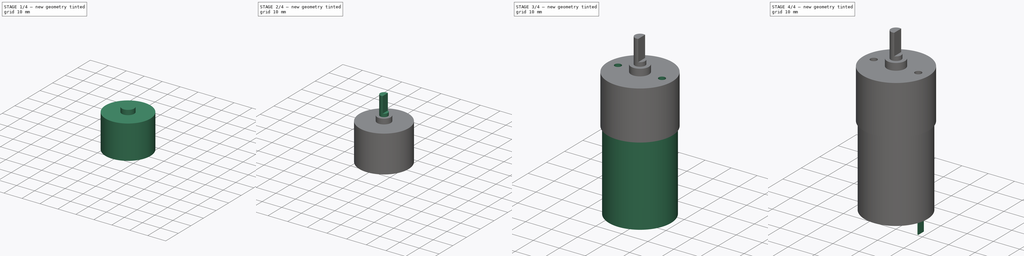
[diagram: build sequence overview — one tinted view per stage of 4, left to right]
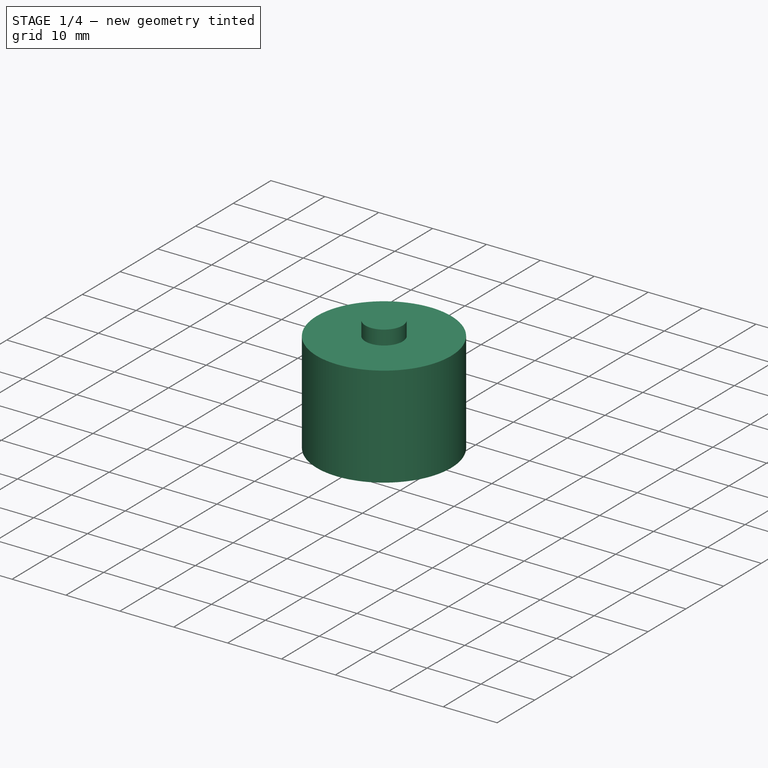
[diagram: stage 1 of 4 — iso view after this stage's code; geometry added in this stage tinted green]
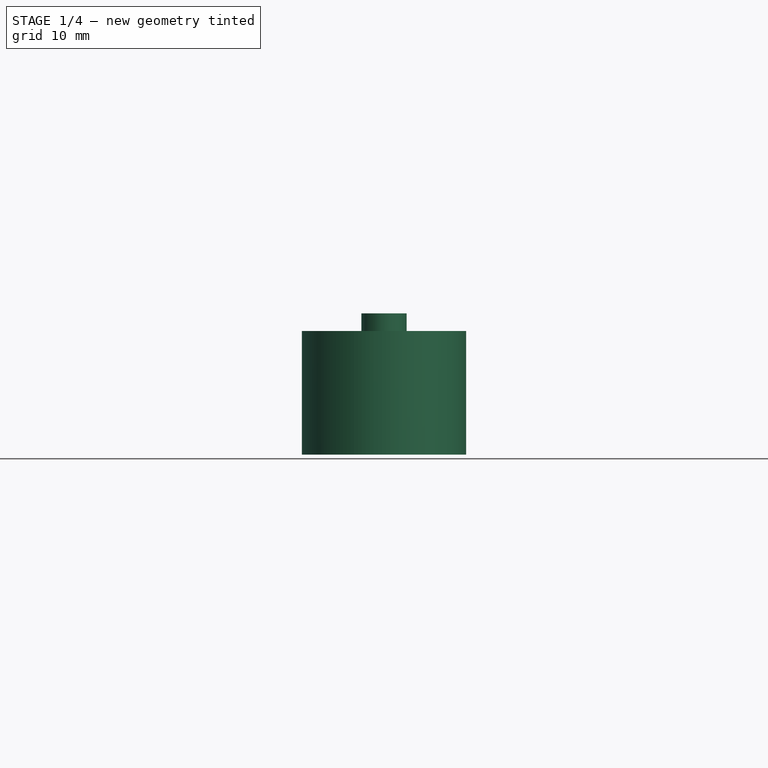
[diagram: stage 1 of 4 — front view after this stage's code; geometry added in this stage tinted green]
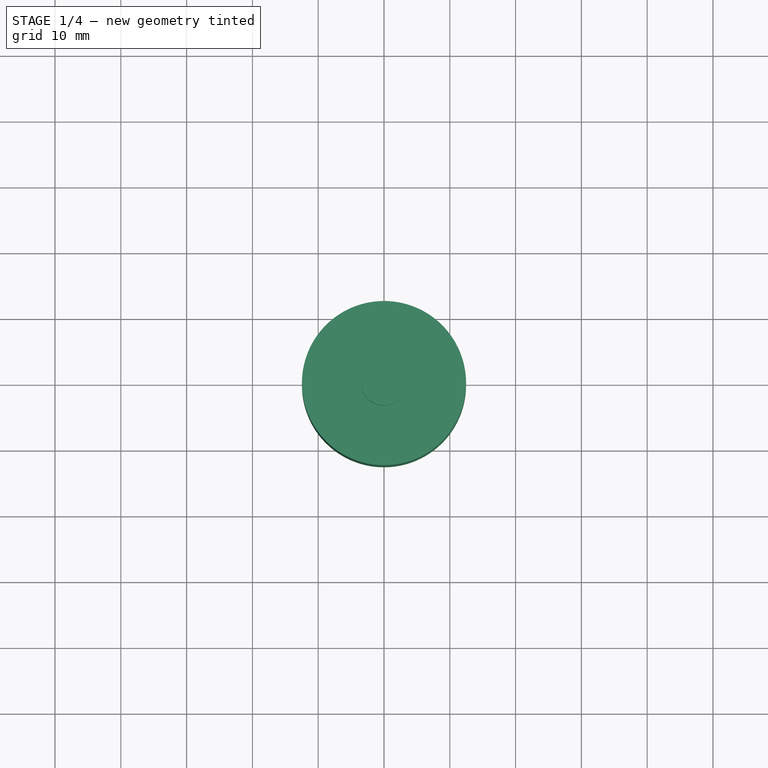
[diagram: stage 1 of 4 — top view after this stage's code; geometry added in this stage tinted green]
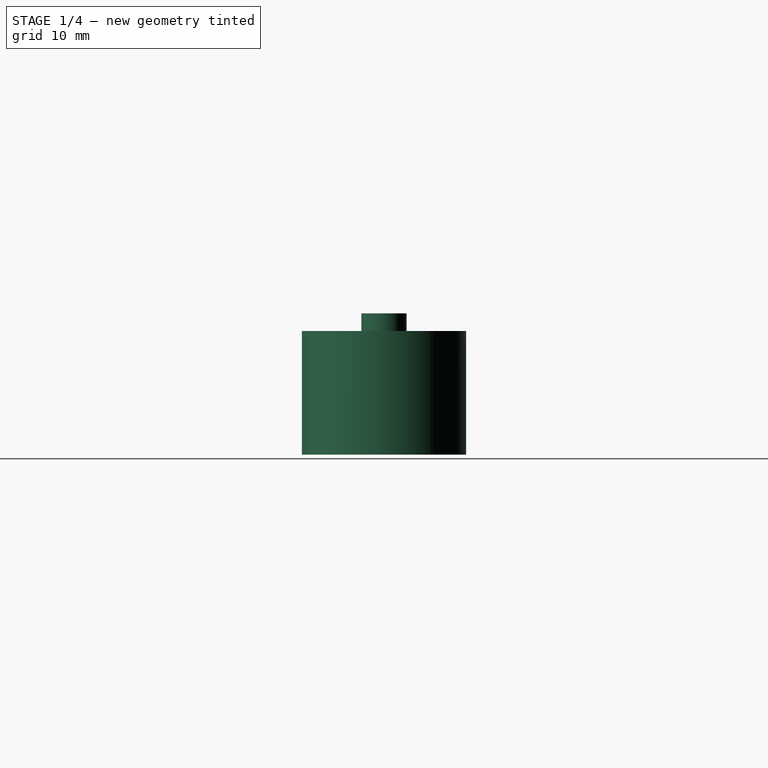
[diagram: stage 1 of 4 — right view after this stage's code; geometry added in this stage tinted green]
FCSTD DOCUMENT  (FreeCAD 0.15R4671 (Git))
Label: gearMotor
License: All rights reserved
LicenseURL: http://en.wikipedia.org/wiki/All_rights_reserved
objects: Sketcher::SketchObject×9, PartDesign::Pad×7, PartDesign::Pocket×2
note: 27 computed .brp shape members not serialized (recipe doc carries the construction recipe); baked Part::Feature solids carry a one-line shape summary decoded from their .brp

FEATURE [Sketcher::SketchObject] Sketch
  sketch-geometry (1):
    g0: Circle CenterX=0 CenterY=0 CenterZ=0 NormalX=0 NormalY=0 NormalZ=1 Radius=12.4778
  constraints (2):
    c: Radius(g0) = 12.4778
    c: Coincident(g-1,g0)
FEATURE [PartDesign::Pad] Pad
  Length = 18.7833
  Length2 = 100
  Reversed = true
  Sketch = -> Sketch
  Type = 0
FEATURE [Sketcher::SketchObject] Sketch001
  Support = -> Pad [Face2]
  sketch-geometry (1):
    g0: Circle CenterX=0 CenterY=0 CenterZ=0 NormalX=0 NormalY=0 NormalZ=1 Radius=3.44805
  constraints (2):
    c: Coincident(g0,g-1)
    c: Radius(g0) = 3.44805
FEATURE [PartDesign::Pad] Pad001
  Length = 2.667
  Length2 = 100
  Sketch = -> Sketch001
  Type = 0
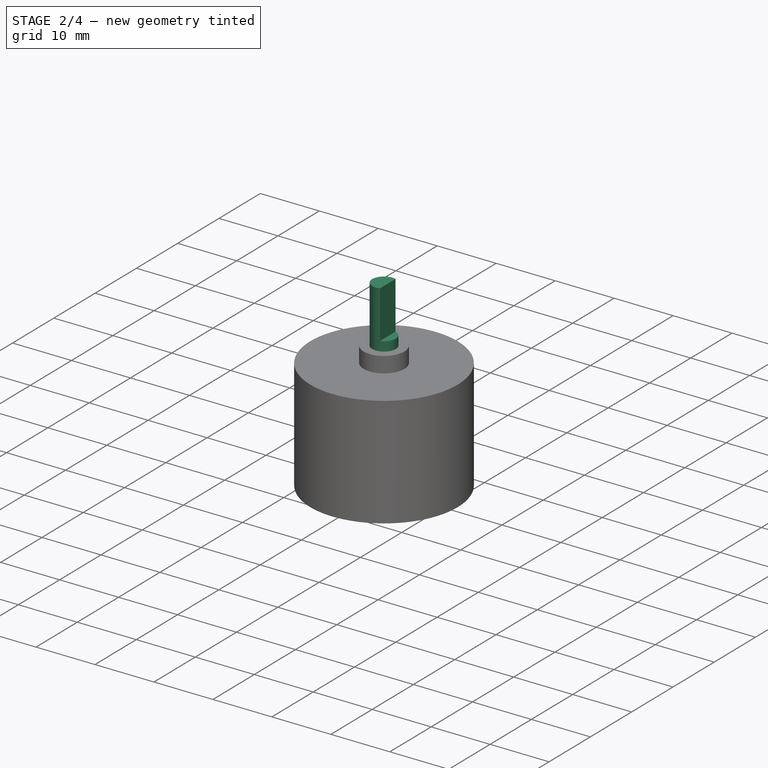
[diagram: stage 2 of 4 — iso view after this stage's code; geometry added in this stage tinted green]
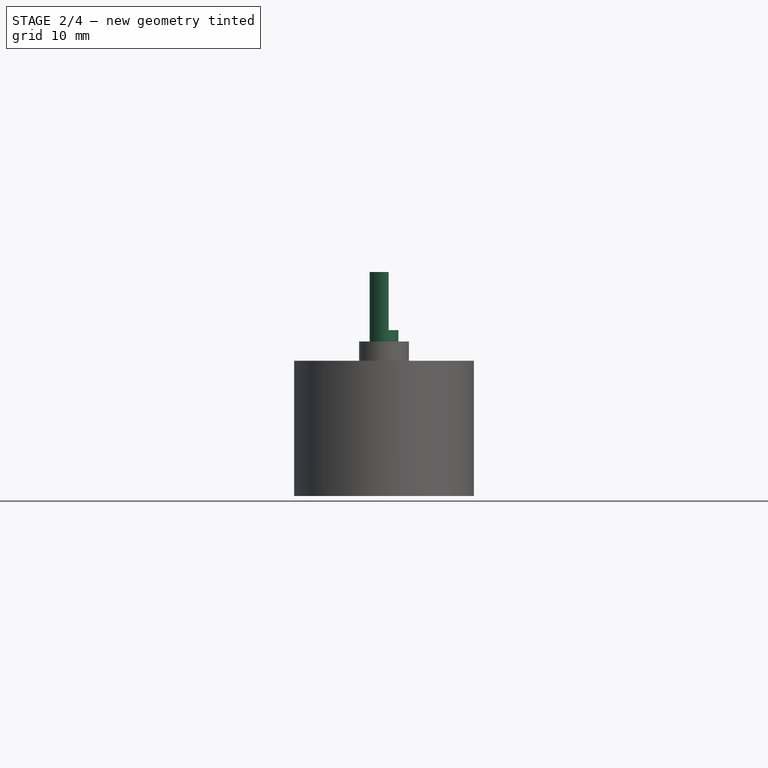
[diagram: stage 2 of 4 — front view after this stage's code; geometry added in this stage tinted green]
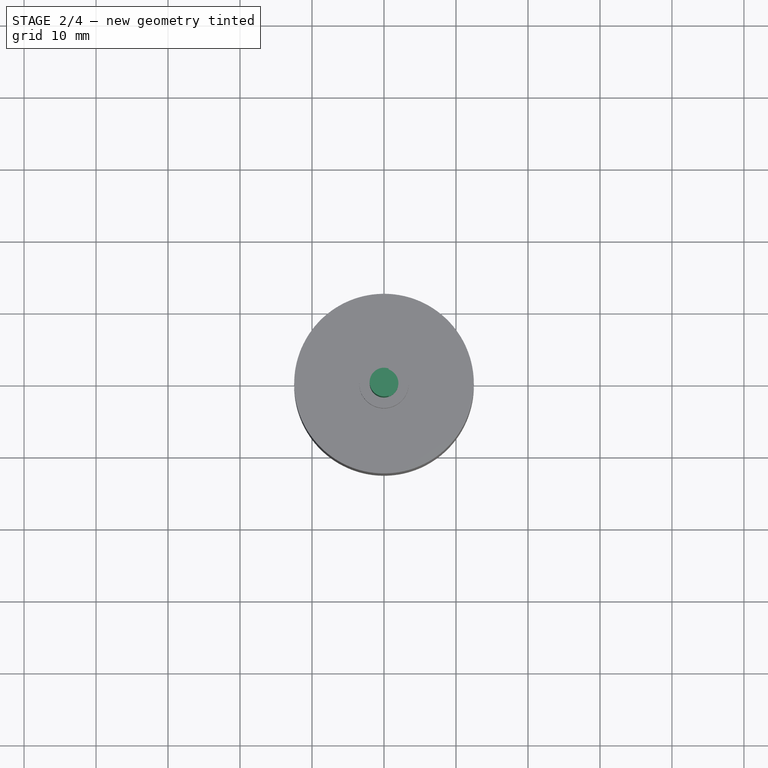
[diagram: stage 2 of 4 — top view after this stage's code; geometry added in this stage tinted green]
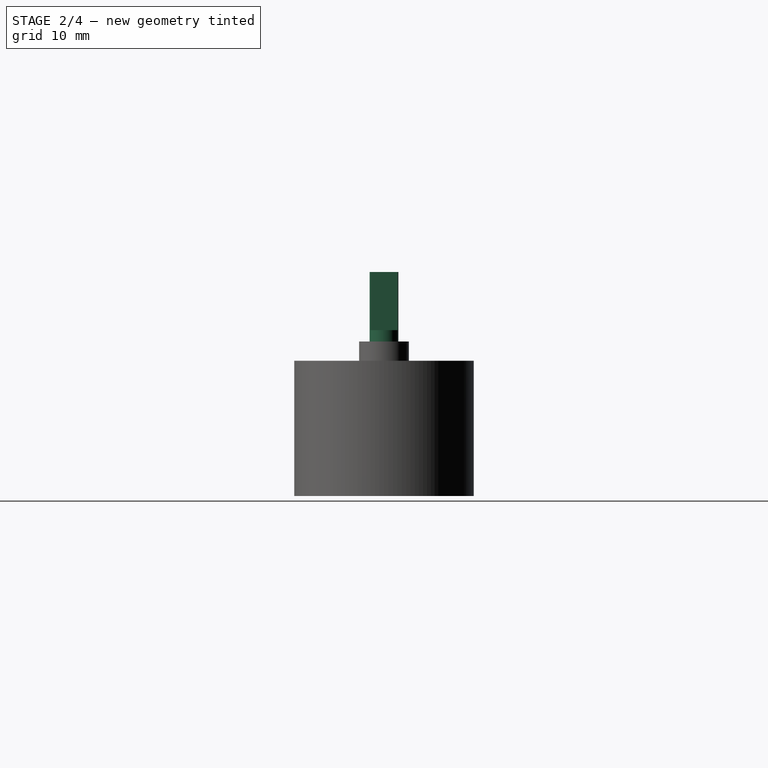
[diagram: stage 2 of 4 — right view after this stage's code; geometry added in this stage tinted green]
FEATURE [Sketcher::SketchObject] Sketch002
  Placement = pos=(0,0,2.667) rot=(0,0,1;0rad)
  Support = -> Pad001 [Face5]
  sketch-geometry (1):
    g0: Circle CenterX=0 CenterY=0 CenterZ=0 NormalX=0 NormalY=0 NormalZ=1 Radius=1.9939
  constraints (2):
    c: Coincident(g0,g-1)
    c: Radius(g0) = 1.9939
FEATURE [PartDesign::Pad] Pad002
  Length = 9.652
  Length2 = 100
  Sketch = -> Sketch002
  Type = 0
FEATURE [Sketcher::SketchObject] Sketch003
  Placement = pos=(0,0,12.319) rot=(0,0,1;0rad)
  Support = -> Pad002 [Face7]
  sketch-geometry (4):
    g0: LineSegment StartX=0.635 StartY=2.0338 StartZ=0 EndX=2.24051 EndY=2.0338 EndZ=0
    g1: LineSegment StartX=2.24051 StartY=2.0338 StartZ=0 EndX=2.24051 EndY=-2.08894 EndZ=0
    g2: LineSegment StartX=2.24051 StartY=-2.08894 StartZ=0 EndX=0.635 EndY=-2.08894 EndZ=0
    g3: LineSegment StartX=0.635 StartY=-2.08894 StartZ=0 EndX=0.635 EndY=2.0338 EndZ=0
  constraints (9):
    c: Coincident(g0,g1)
    c: Coincident(g1,g2)
    c: Coincident(g2,g3)
    c: Coincident(g3,g0)
    c: Horizontal(g0)
    c: Horizontal(g2)
    c: Vertical(g1)
    c: Vertical(g3)
    c: DistanceX(g-1,g0) = 0.635
FEATURE [PartDesign::Pocket] Pocket
  Length = 8.0645
  Sketch = -> Sketch003
  Type = 0
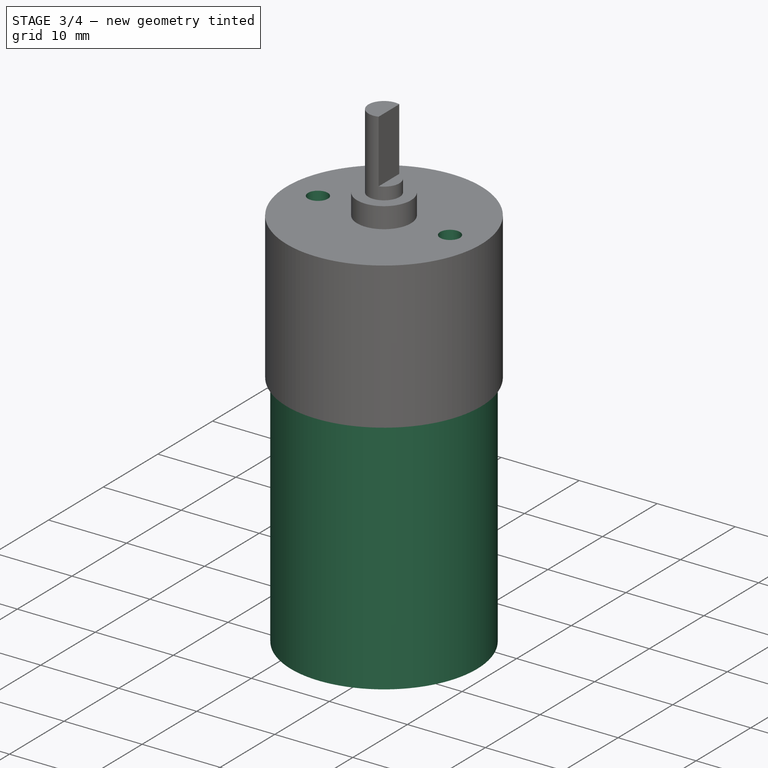
[diagram: stage 3 of 4 — iso view after this stage's code; geometry added in this stage tinted green]
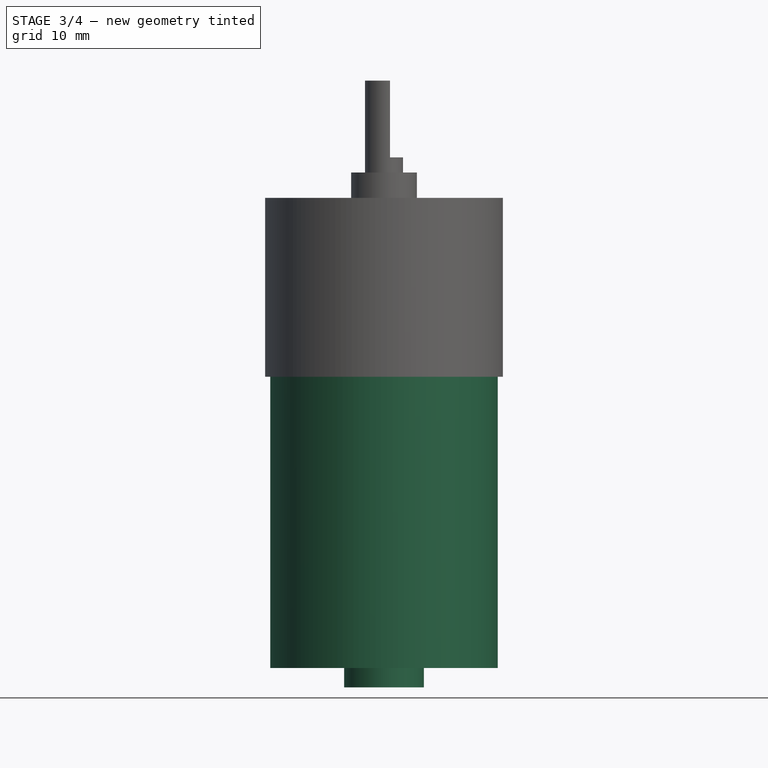
[diagram: stage 3 of 4 — front view after this stage's code; geometry added in this stage tinted green]
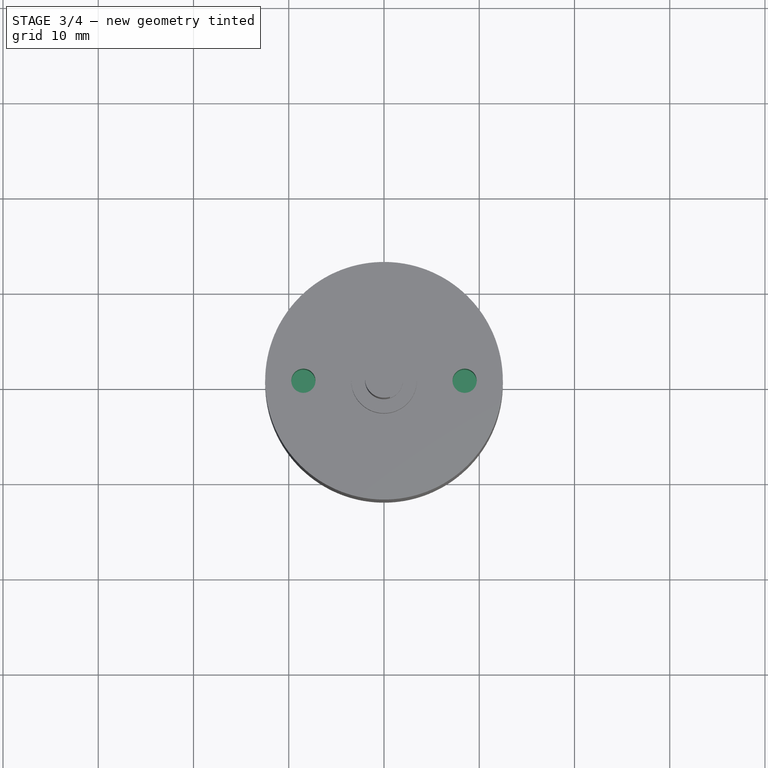
[diagram: stage 3 of 4 — top view after this stage's code; geometry added in this stage tinted green]
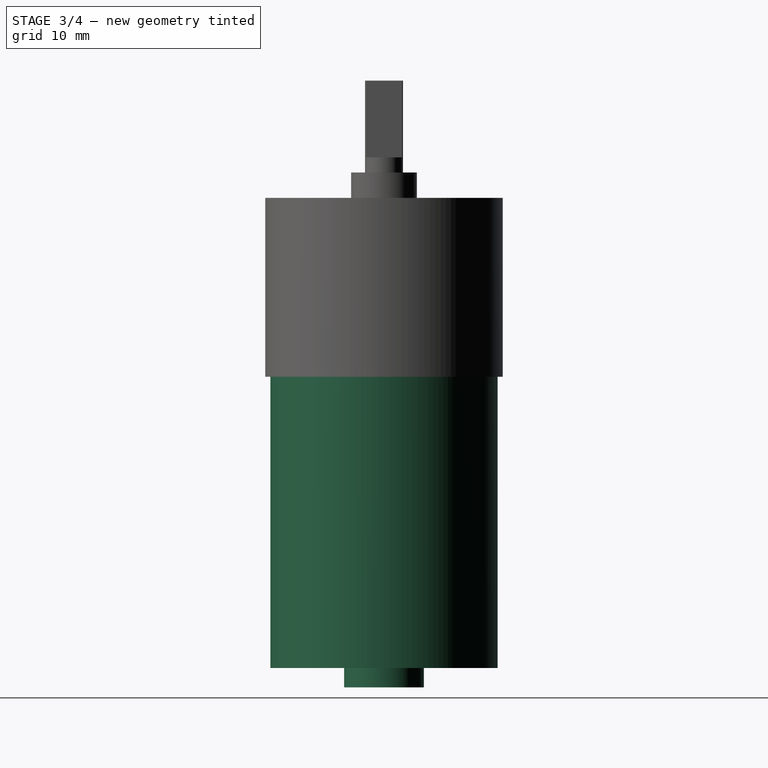
[diagram: stage 3 of 4 — right view after this stage's code; geometry added in this stage tinted green]
FEATURE [Sketcher::SketchObject] Sketch004
  Support = -> Pocket [Face2]
  sketch-geometry (2):
    g0: Circle CenterX=8.46455 CenterY=0 CenterZ=0 NormalX=0 NormalY=0 NormalZ=1 Radius=1.27
    g1: Circle CenterX=-8.46455 CenterY=0 CenterZ=0 NormalX=0 NormalY=0 NormalZ=1 Radius=1.27
  constraints (6):
    c: Radius(g0) = 1.27
    c: Equal(g0,g1)
    c: DistanceX(g0) = 8.46455
    c: DistanceX(g1) = -8.46455
    c: DistanceY(g0) = 0
    c: DistanceY(g1) = 0
FEATURE [PartDesign::Pocket] Pocket001
  Length = 6.35
  Sketch = -> Sketch004
  Type = 0
FEATURE [Sketcher::SketchObject] Sketch005
  Placement = pos=(0,0,-18.7833) rot=(1,0,0;3.14159rad)
  Support = -> Pocket001 [Face3]
  sketch-geometry (1):
    g0: Circle CenterX=0 CenterY=0 CenterZ=0 NormalX=0 NormalY=0 NormalZ=1 Radius=11.938
  constraints (2):
    c: Coincident(g0,g-1)
    c: Radius(g0) = 11.938
FEATURE [PartDesign::Pad] Pad003
  Length = 30.5689
  Length2 = 100
  Sketch = -> Sketch005
  Type = 0
FEATURE [Sketcher::SketchObject] Sketch006
  Placement = pos=(0,0,-49.3522) rot=(1,0,0;3.14159rad)
  Support = -> Pad003 [Face11]
  sketch-geometry (1):
    g0: Circle CenterX=0 CenterY=0 CenterZ=0 NormalX=0 NormalY=0 NormalZ=1 Radius=4.191
  constraints (2):
    c: Coincident(g0,g-1)
    c: Radius(g0) = 4.191
FEATURE [PartDesign::Pad] Pad004
  Length = 2.0447
  Length2 = 100
  Sketch = -> Sketch006
  Type = 0
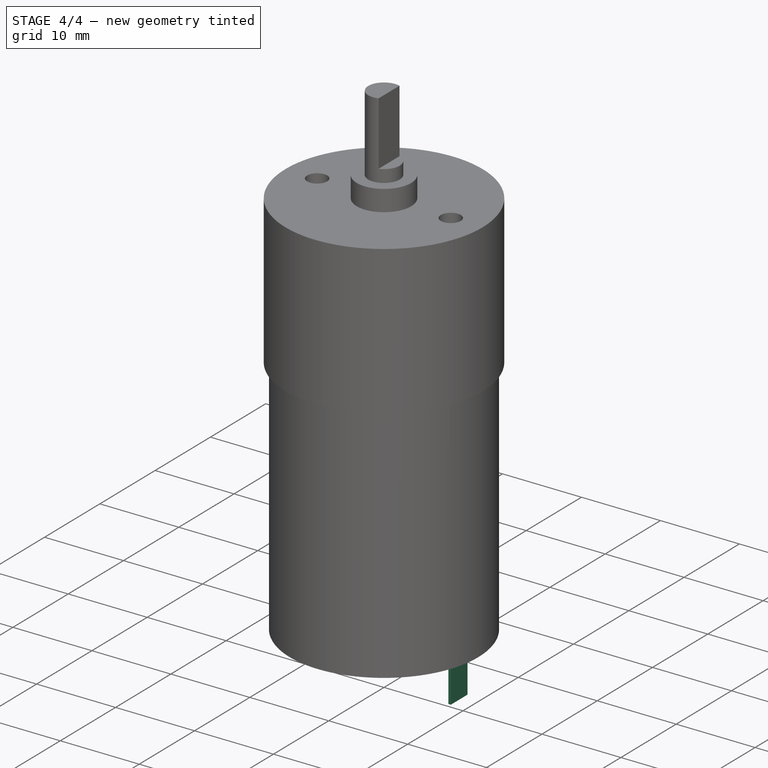
[diagram: stage 4 of 4 — iso view after this stage's code; geometry added in this stage tinted green]
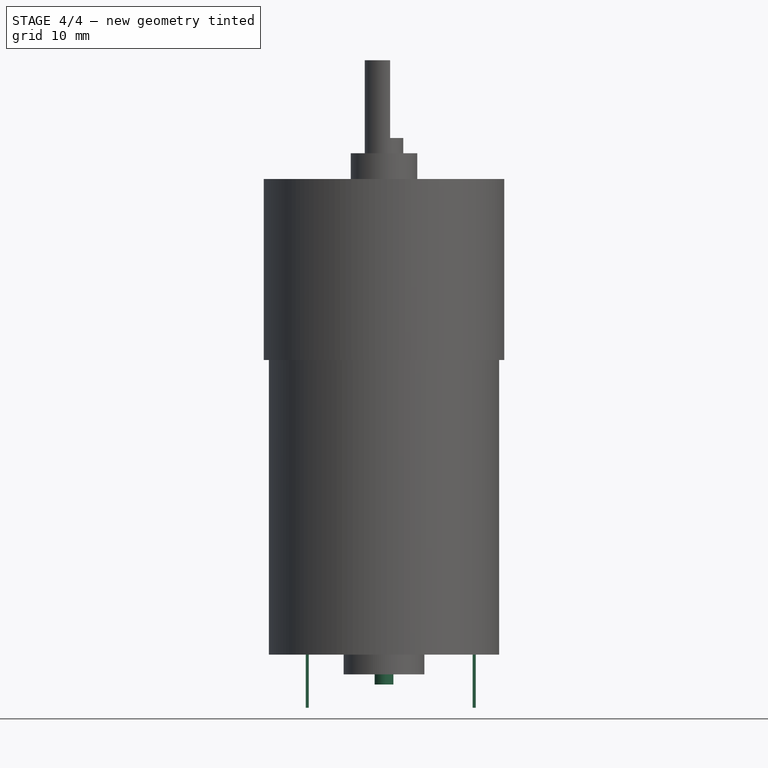
[diagram: stage 4 of 4 — front view after this stage's code; geometry added in this stage tinted green]
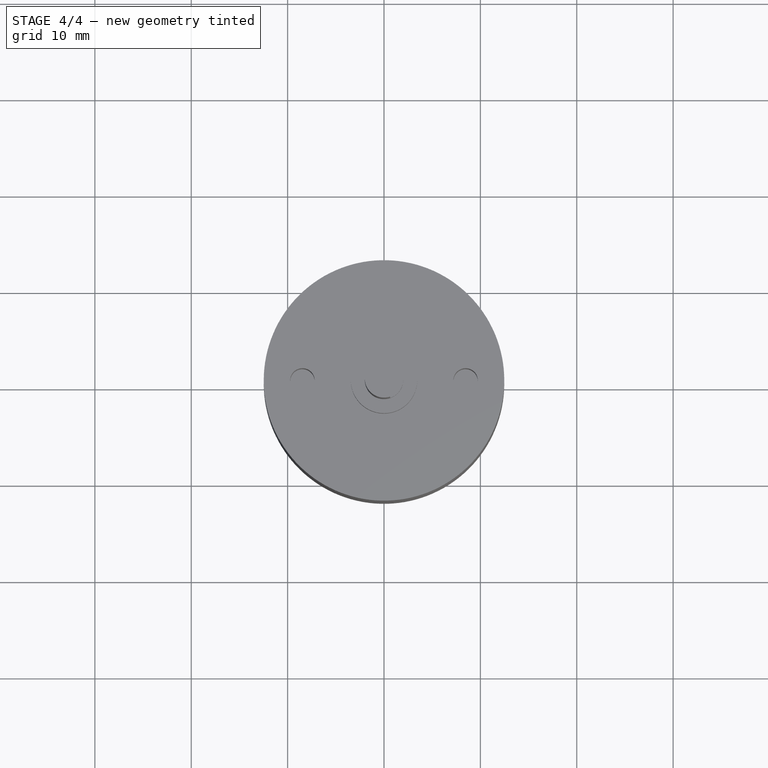
[diagram: stage 4 of 4 — top view after this stage's code; geometry added in this stage tinted green]
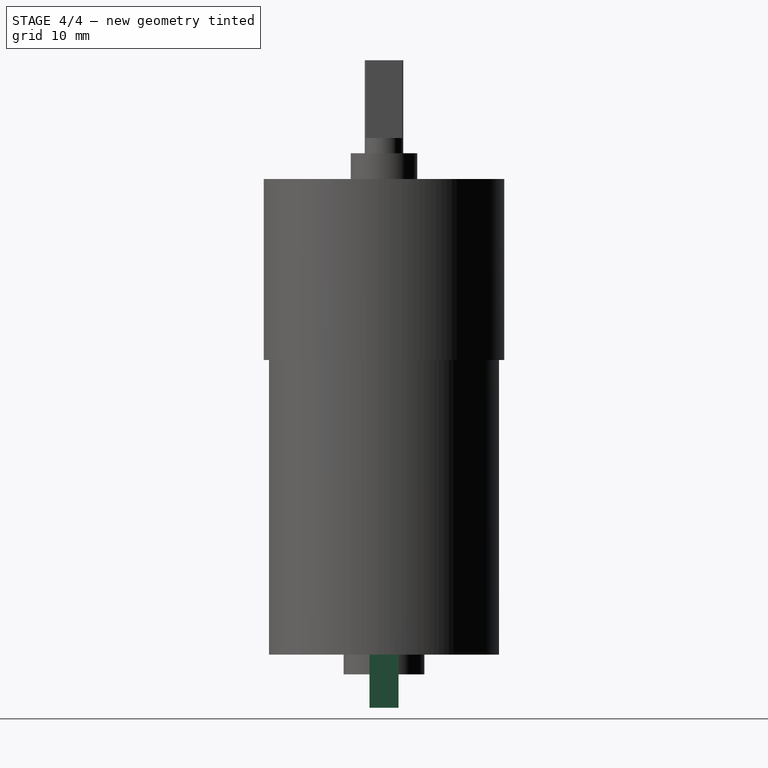
[diagram: stage 4 of 4 — right view after this stage's code; geometry added in this stage tinted green]
FEATURE [Sketcher::SketchObject] Sketch007
  ExternalGeometry = -> [Pad004]
  Placement = pos=(0,0,-49.3522) rot=(1,0,0;3.14159rad)
  Support = -> Pad004 [Face11]
  sketch-geometry (8):
    g0: LineSegment StartX=9.20115 StartY=1.50495 StartZ=0 EndX=9.51865 EndY=1.50495 EndZ=0
    g1: LineSegment StartX=9.51865 StartY=1.50495 StartZ=0 EndX=9.51865 EndY=-1.50495 EndZ=0
    g2: LineSegment StartX=9.51865 StartY=-1.50495 StartZ=0 EndX=9.20115 EndY=-1.50495 EndZ=0
    g3: LineSegment StartX=9.20115 StartY=-1.50495 StartZ=0 EndX=9.20115 EndY=1.50495 EndZ=0
    g4: LineSegment StartX=-8.12165 StartY=1.50622 StartZ=0 EndX=-7.80415 EndY=1.50622 EndZ=0
    g5: LineSegment StartX=-7.80415 StartY=1.50622 StartZ=0 EndX=-7.80415 EndY=-1.50368 EndZ=0
    g6: LineSegment StartX=-7.80415 StartY=-1.50368 StartZ=0 EndX=-8.12165 EndY=-1.50368 EndZ=0
    g7: LineSegment StartX=-8.12165 StartY=-1.50368 StartZ=0 EndX=-8.12165 EndY=1.50622 EndZ=0
  constraints (27):
    c: Coincident(g0,g1)
    c: Coincident(g1,g2)
    c: Coincident(g2,g3)
    c: Coincident(g3,g0)
    c: Horizontal(g0)
    c: Horizontal(g2)
    c: Vertical(g1)
    c: Vertical(g3)
    c: Coincident(g4,g5)
    c: Coincident(g5,g6)
    c: Coincident(g6,g7)
    c: Coincident(g7,g4)
    c: Horizontal(g4)
    c: Horizontal(g6)
    c: Vertical(g5)
    c: Vertical(g7)
    c: DistanceY(g0,g1) = -3.0099
    c: Equal(g5,g7)
    c: Equal(g7,g3)
    c: Equal(g0,g2)
    c: Equal(g2,g4)
    c: Equal(g4,g6)
    c: DistanceX(g0,g0) = 0.3175
    c: DistanceX(g0,g-3) = 2.9591
    c: DistanceY(g0,g-3) = -1.50495
    c: DistanceX(g4,g0) = 17.0053
    c: DistanceY(g4,g-3) = -1.50622
FEATURE [PartDesign::Pad] Pad005
  Length = 5.5118
  Length2 = 100
  Sketch = -> Sketch007
  Type = 0
FEATURE [Sketcher::SketchObject] Sketch008
  Placement = pos=(0,0,-51.3969) rot=(1,0,0;3.14159rad)
  Support = -> Pad005 [Face26]
  sketch-geometry (1):
    g0: Circle CenterX=0 CenterY=0 CenterZ=0 NormalX=0 NormalY=0 NormalZ=1 Radius=0.9779
  constraints (2):
    c: Coincident(g0,g-1)
    c: Radius(g0) = 0.9779
FEATURE [PartDesign::Pad] Pad006
  Length = 1.0541
  Length2 = 100
  Sketch = -> Sketch008
  Type = 0
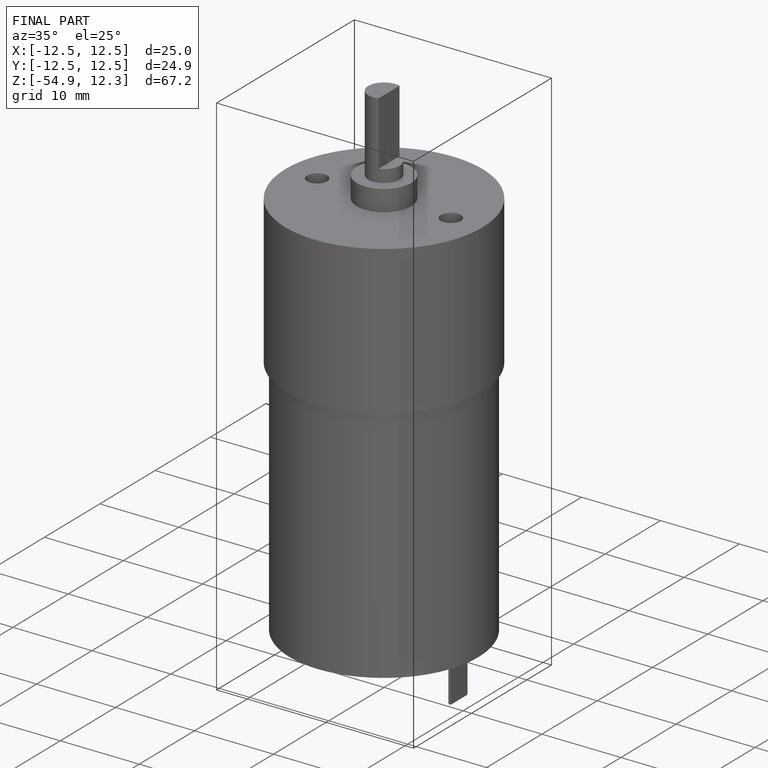
[diagram: finished part — iso view with bounding-box wireframe]
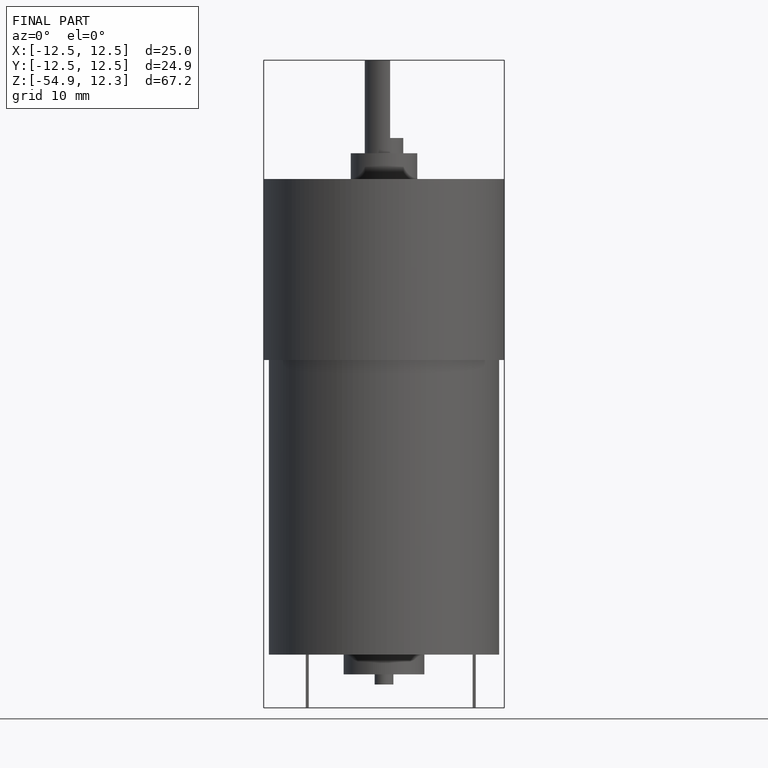
[diagram: finished part — front view with bounding-box wireframe]
